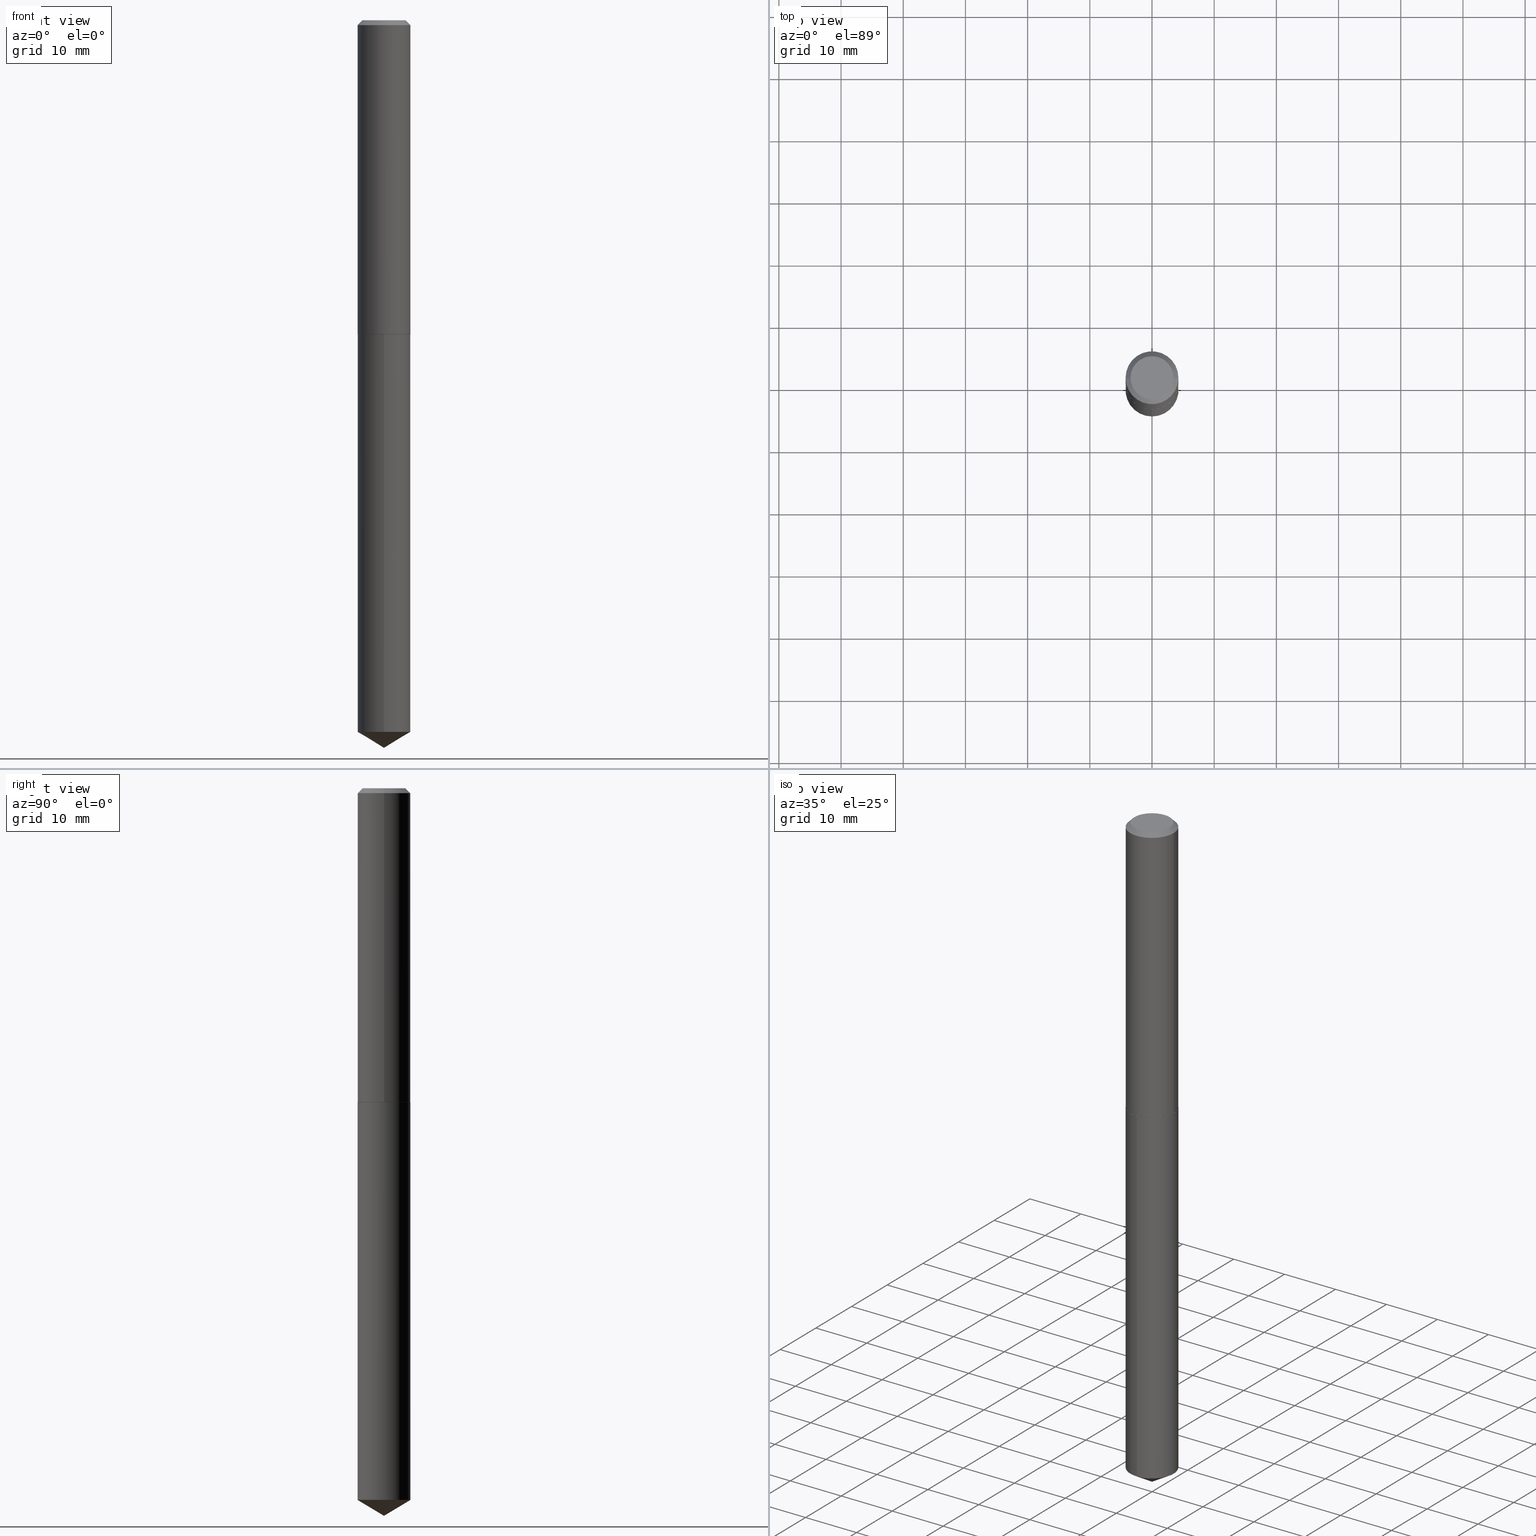
[diagram: canonical four-view strip — front | top / right | iso, engineering-drawing reading convention]
A machine part, canonical four-view strip (front | top / right | iso — engineering-drawing reading convention). The complete STEP part file that produces these views, byte-faithful:
ISO-10303-21;
HEADER;
FILE_DESCRIPTION (( 'STEP AP203' ),
    '1' );
FILE_NAME ('68286.STEP',
    '2024-04-23T12:58:16',
    ( '' ),
    ( '' ),
    'SwSTEP 2.0',
    'SolidWorks 2023',
    '' );
FILE_SCHEMA (( 'CONFIG_CONTROL_DESIGN' ));
ENDSEC;

DATA;
#1 = CARTESIAN_POINT ( 'NONE',  ( 1.188737996926758082E-15, 0.1672999999999930931, -1.988100000000000644 ) ) ;
#2 = ORIENTED_EDGE ( 'NONE', *, *, #349, .F. ) ;
#3 = CC_DESIGN_APPROVAL ( #180, ( #195 ) ) ;
#4 = DIRECTION ( 'NONE',  ( 0.000000000000000000, 0.000000000000000000, 1.000000000000000000 ) ) ;
#5 = ORIENTED_EDGE ( 'NONE', *, *, #78, .T. ) ;
#6 = DIRECTION ( 'NONE',  ( -2.445468806185136597E-29, 3.491481338843145583E-15, 1.000000000000000000 ) ) ;
#7 = VERTEX_POINT ( 'NONE', #71 ) ;
#8 = AXIS2_PLACEMENT_3D ( 'NONE', #32, #6, #129 ) ;
#9 = ADVANCED_FACE ( 'NONE', ( #338 ), #306, .T. ) ;
#10 = CALENDAR_DATE ( 2024, 23, 4 ) ;
#11 = LENGTH_MEASURE_WITH_UNIT ( LENGTH_MEASURE( 0.02539999999999999897 ), #268 );
#12 = PERSON_AND_ORGANIZATION_ROLE ( 'creator' ) ;
#13 = CIRCLE ( 'NONE', #56, 0.1673000000000000043 ) ;
#14 = DIRECTION ( 'NONE',  ( -2.445468806185136597E-29, 3.491481338843145583E-15, 1.000000000000000000 ) ) ;
#15 = PRODUCT_RELATED_PRODUCT_CATEGORY ( 'detail', '', ( #97 ) ) ;
#16 = CONICAL_SURFACE ( 'NONE', #278, 0.1673000000000002818, 0.7853981633973118326 ) ;
#17 = EDGE_CURVE ( 'NONE', #47, #93, #212, .T. ) ;
#18 = CONICAL_SURFACE ( 'NONE', #118, 0.1673000000000000043, 0.7853981633974450594 ) ;
#19 = DIRECTION ( 'NONE',  ( -2.445468806185136597E-29, 3.491481338843145583E-15, 1.000000000000000000 ) ) ;
#20 = CARTESIAN_POINT ( 'NONE',  ( -8.500465600420216784E-28, 1.213900885174054718E-13, 34.76377874015748404 ) ) ;
#21 = AXIS2_PLACEMENT_3D ( 'NONE', #296, #386, #262 ) ;
#22 = ORIENTED_EDGE ( 'NONE', *, *, #197, .T. ) ;
#23 = CC_DESIGN_DATE_AND_TIME_ASSIGNMENT ( #216, #346, ( #195 ) ) ;
#24 = FACE_OUTER_BOUND ( 'NONE', #128, .T. ) ;
#25 = DIRECTION ( 'NONE',  ( -0.7071067811864509833, 7.493145998870005484E-15, 0.7071067811866440511 ) ) ;
#26 = CIRCLE ( 'NONE', #351, 0.1673000000000000043 ) ;
#27 = PLANE ( 'NONE',  #69 ) ;
#28 = FACE_OUTER_BOUND ( 'NONE', #61, .T. ) ;
#29 = PRODUCT_DEFINITION_FORMATION_WITH_SPECIFIED_SOURCE ( 'ANY', '', #97, .NOT_KNOWN. ) ;
#30 = UNCERTAINTY_MEASURE_WITH_UNIT (LENGTH_MEASURE( 1.000000000000000082E-05 ), #153, 'distance_accuracy_value', 'NONE');
#31 = DIRECTION ( 'NONE',  ( -6.982962677686266711E-15, -1.000000000000000000, 3.265807523806650431E-15 ) ) ;
#32 = CARTESIAN_POINT ( 'NONE',  ( 0.000000000000000000, 0.000000000000000000, 0.000000000000000000 ) ) ;
#33 = VECTOR ( 'NONE', #83, 39.37007874015748143 ) ;
#34 = EDGE_CURVE ( 'NONE', #63, #121, #372, .T. ) ;
#35 = ORIENTED_EDGE ( 'NONE', *, *, #318, .T. ) ;
#36 = EDGE_CURVE ( 'NONE', #254, #277, #184, .T. ) ;
#37 = CIRCLE ( 'NONE', #235, 0.1360500000000000043 ) ;
#38 = DATE_AND_TIME ( #100, #40 ) ;
#39 = ORIENTED_EDGE ( 'NONE', *, *, #34, .F. ) ;
#40 = LOCAL_TIME ( 8, 58, 16.00000000000000000, #244 ) ;
#41 = EDGE_CURVE ( 'NONE', #277, #254, #37, .T. ) ;
#42 = APPROVAL_ROLE ( '' ) ;
#43 = AXIS2_PLACEMENT_3D ( 'NONE', #357, #174, #232 ) ;
#44 = APPLICATION_CONTEXT ( 'configuration controlled 3d designs of mechanical parts and assemblies' ) ;
#45 = CONICAL_SURFACE ( 'NONE', #138, 0.1673000000000000043, 0.7853981633974450594 ) ;
#46 = ADVANCED_FACE ( 'NONE', ( #198 ), #109, .T. ) ;
#47 = VERTEX_POINT ( 'NONE', #293 ) ;
#48 = COORDINATED_UNIVERSAL_TIME_OFFSET ( 5, 0, .BEHIND. ) ;
#49 = AXIS2_PLACEMENT_3D ( 'NONE', #53, #255, #355 ) ;
#50 = LINE ( 'NONE', #354, #369 ) ;
#51 = CARTESIAN_POINT ( 'NONE',  ( 0.1673000000000001430, -1.168249655976913378E-15, 8.157843745906607218E-30 ) ) ;
#52 = ORIENTED_EDGE ( 'NONE', *, *, #300, .T. ) ;
#53 = CARTESIAN_POINT ( 'NONE',  ( 0.000000000000000000, 0.000000000000000000, 0.000000000000000000 ) ) ;
#54 = DIRECTION ( 'NONE',  ( -2.445221730653592227E-29, 3.491835165066983008E-15, 1.000000000000000000 ) ) ;
#55 = DIRECTION ( 'NONE',  ( -2.445221730653592227E-29, 3.491835165066983008E-15, 1.000000000000000000 ) ) ;
#56 = AXIS2_PLACEMENT_3D ( 'NONE', #275, #215, #388 ) ;
#57 = DIRECTION ( 'NONE',  ( -2.445221730653592227E-29, 3.491835165066983008E-15, 1.000000000000000000 ) ) ;
#58 = CARTESIAN_POINT ( 'NONE',  ( 0.1360500000000000043, -1.095120429731421513E-15, 1.200153863171560703E-18 ) ) ;
#59 = CARTESIAN_POINT ( 'NONE',  ( 4.861836533576670348E-29, -6.941414049754057803E-15, -1.988099999999999978 ) ) ;
#60 = CARTESIAN_POINT ( 'NONE',  ( -2.934938834991149230E-47, 4.190314816979047694E-33, 1.200153863164409918E-18 ) ) ;
#61 = EDGE_LOOP ( 'NONE', ( #107, #286 ) ) ;
#62 = CC_DESIGN_SECURITY_CLASSIFICATION ( #379, ( #29 ) ) ;
#63 = VERTEX_POINT ( 'NONE', #176 ) ;
#64 = CC_DESIGN_PERSON_AND_ORGANIZATION_ASSIGNMENT ( #131, #157, ( #29 ) ) ;
#65 = PERSON_AND_ORGANIZATION ( #340, #159 ) ;
#66 = EDGE_LOOP ( 'NONE', ( #52, #238, #236, #377 ) ) ;
#67 = ORIENTED_EDGE ( 'NONE', *, *, #102, .T. ) ;
#68 = PERSON_AND_ORGANIZATION_ROLE ( 'creator' ) ;
#69 = AXIS2_PLACEMENT_3D ( 'NONE', #335, #211, #245 ) ;
#70 = VERTEX_POINT ( 'NONE', #1 ) ;
#71 = CARTESIAN_POINT ( 'NONE',  ( 0.1668000000000002536, -8.106172224392129160E-15, -1.988100000000000200 ) ) ;
#72 =( NAMED_UNIT ( * ) PLANE_ANGLE_UNIT ( ) SI_UNIT ( $, .RADIAN. ) );
#73 = AXIS2_PLACEMENT_3D ( 'NONE', #20, #233, #228 ) ;
#74 = PERSON_AND_ORGANIZATION ( #340, #159 ) ;
#75 = FACE_OUTER_BOUND ( 'NONE', #337, .T. ) ;
#76 = DATE_AND_TIME ( #229, #166 ) ;
#77 = ORIENTED_EDGE ( 'NONE', *, *, #318, .F. ) ;
#78 = EDGE_CURVE ( 'NONE', #213, #121, #285, .T. ) ;
#79 = CARTESIAN_POINT ( 'NONE',  ( 7.642090019328603538E-31, -1.091087918388490390E-16, -0.03125000000000021511 ) ) ;
#80 = DIRECTION ( 'NONE',  ( -2.445221730653592227E-29, 3.491835165066983008E-15, 1.000000000000000000 ) ) ;
#81 = LINE ( 'NONE', #324, #246 ) ;
#82 = FACE_OUTER_BOUND ( 'NONE', #368, .T. ) ;
#83 = DIRECTION ( 'NONE',  ( -2.445221730653592227E-29, 3.491835165066983008E-15, 1.000000000000000000 ) ) ;
#84 = CIRCLE ( 'NONE', #315, 0.1668000000000002536 ) ;
#85 = APPROVAL ( #316, 'UNSPECIFIED' ) ;
#86 = LINE ( 'NONE', #89, #371 ) ;
#87 = EDGE_CURVE ( 'NONE', #123, #47, #149, .T. ) ;
#88 = EDGE_LOOP ( 'NONE', ( #366, #345, #22, #77 ) ) ;
#89 = CARTESIAN_POINT ( 'NONE',  ( 1.126441589431707072E-28, -1.608303343701682065E-14, -4.606300000000000061 ) ) ;
#90 = EDGE_CURVE ( 'NONE', #123, #332, #112, .T. ) ;
#91 = ORIENTED_EDGE ( 'NONE', *, *, #177, .T. ) ;
#92 = APPROVAL_ROLE ( '' ) ;
#93 = VERTEX_POINT ( 'NONE', #140 ) ;
#94 = APPROVAL_STATUS ( 'not_yet_approved' ) ;
#95 = APPROVAL_PERSON_ORGANIZATION ( #311, #210, #42 ) ;
#96 = DIRECTION ( 'NONE',  ( 1.000000000000000000, 0.000000000000000000, 0.000000000000000000 ) ) ;
#97 = PRODUCT ( '68286', '68286', '', ( #276 ) ) ;
#98 = MANIFOLD_SOLID_BREP ( 'Body-Move/Copy2[2]', #320 ) ;
#99 = DIRECTION ( 'NONE',  ( -6.982962677686266711E-15, -1.000000000000000000, 3.265807523806650431E-15 ) ) ;
#100 = CALENDAR_DATE ( 2024, 23, 4 ) ;
#101 = AXIS2_PLACEMENT_3D ( 'NONE', #258, #322, #165 ) ;
#102 = EDGE_CURVE ( 'NONE', #277, #93, #256, .T. ) ;
#103 = ADVANCED_FACE ( 'NONE', ( #356 ), #251, .T. ) ;
#104 = VECTOR ( 'NONE', #182, 39.37007874015748143 ) ;
#105 = CARTESIAN_POINT ( 'NONE',  ( -0.1668000000000002536, -5.753579539332099070E-15, -1.988100000000000200 ) ) ;
#106 = LOCAL_TIME ( 8, 58, 16.00000000000000000, #48 ) ;
#107 = ORIENTED_EDGE ( 'NONE', *, *, #170, .T. ) ;
#108 = CARTESIAN_POINT ( 'NONE',  ( -1.168249655976802346E-15, -0.1673000000000157694, -4.505776018436688624 ) ) ;
#109 = CYLINDRICAL_SURFACE ( 'NONE', #365, 0.1673000000000000043 ) ;
#110 = DIRECTION ( 'NONE',  ( 2.445468806185136597E-29, -3.491481338843145583E-15, -1.000000000000000000 ) ) ;
#111 = CYLINDRICAL_SURFACE ( 'NONE', #200, 0.1673000000000000043 ) ;
#112 = LINE ( 'NONE', #51, #208 ) ;
#113 = LINE ( 'NONE', #260, #274 ) ;
#114 = PLANE ( 'NONE',  #21 ) ;
#115 = CARTESIAN_POINT ( 'NONE',  ( 1.188737996926757687E-15, 0.1672999999999842669, -4.505776018436689512 ) ) ;
#116 = LOCAL_TIME ( 8, 58, 16.00000000000000000, #183 ) ;
#117 = DIRECTION ( 'NONE',  ( 1.000000000000000000, -6.982962677686262766E-15, 0.000000000000000000 ) ) ;
#118 = AXIS2_PLACEMENT_3D ( 'NONE', #261, #110, #385 ) ;
#119 = AXIS2_PLACEMENT_3D ( 'NONE', #326, #259, #146 ) ;
#120 = VERTEX_POINT ( 'NONE', #105 ) ;
#121 = VERTEX_POINT ( 'NONE', #108 ) ;
#122 = ORIENTED_EDGE ( 'NONE', *, *, #90, .F. ) ;
#123 = VERTEX_POINT ( 'NONE', #231 ) ;
#124 = ADVANCED_FACE ( 'NONE', ( #82 ), #287, .T. ) ;
#125 = ORIENTED_EDGE ( 'NONE', *, *, #17, .T. ) ;
#126 = APPROVAL_STATUS ( 'not_yet_approved' ) ;
#127 = VECTOR ( 'NONE', #133, 39.37007874015748143 ) ;
#128 = EDGE_LOOP ( 'NONE', ( #203, #5, #321, #2 ) ) ;
#129 = DIRECTION ( 'NONE',  ( 1.000000000000000000, -6.982962677686266711E-15, 4.876176775795935793E-29 ) ) ;
#130 = ORIENTED_EDGE ( 'NONE', *, *, #41, .F. ) ;
#131 = PERSON_AND_ORGANIZATION ( #340, #159 ) ;
#132 = EDGE_CURVE ( 'NONE', #93, #332, #26, .T. ) ;
#133 = DIRECTION ( 'NONE',  ( -5.985567269335945224E-15, -0.8571673007021107793, 0.5150380749100567090 ) ) ;
#134 = DIRECTION ( 'NONE',  ( -2.445221730653592227E-29, 3.491835165066983008E-15, 1.000000000000000000 ) ) ;
#135 = APPLICATION_CONTEXT ( 'configuration controlled 3d designs of mechanical parts and assemblies' ) ;
#136 = CC_DESIGN_PERSON_AND_ORGANIZATION_ASSIGNMENT ( #65, #302, ( #97 ) ) ;
#137 = ADVANCED_FACE ( 'NONE', ( #223 ), #16, .T. ) ;
#138 = AXIS2_PLACEMENT_3D ( 'NONE', #325, #196, #381 ) ;
#139 = DIRECTION ( 'NONE',  ( 1.000000000000000000, -6.982962677686262766E-15, 0.000000000000000000 ) ) ;
#140 = CARTESIAN_POINT ( 'NONE',  ( -0.1673000000000000043, -2.335650553535093086E-15, -0.03125000000000021511 ) ) ;
#141 = FACE_OUTER_BOUND ( 'NONE', #181, .T. ) ;
#142 = CARTESIAN_POINT ( 'NONE',  ( 4.860613799173577546E-29, -6.939668309084636299E-15, -1.987600000000000033 ) ) ;
#143 = DIRECTION ( 'NONE',  ( -6.982962677686266711E-15, -1.000000000000000000, 3.265807523806650431E-15 ) ) ;
#144 = DIRECTION ( 'NONE',  ( 1.000000000000000000, -6.982962677686267499E-15, 4.876242033288211584E-29 ) ) ;
#145 = DIRECTION ( 'NONE',  ( -2.445468806185136597E-29, 3.491481338843145583E-15, 1.000000000000000000 ) ) ;
#146 = DIRECTION ( 'NONE',  ( -6.982962677686266711E-15, -1.000000000000000000, 3.265807523806650431E-15 ) ) ;
#147 = FACE_OUTER_BOUND ( 'NONE', #221, .T. ) ;
#148 = EDGE_LOOP ( 'NONE', ( #39, #214, #224 ) ) ;
#149 = CIRCLE ( 'NONE', #329, 0.1673000000000002818 ) ;
#150 = CIRCLE ( 'NONE', #280, 0.1673000000000000043 ) ;
#151 = ORIENTED_EDGE ( 'NONE', *, *, #158, .F. ) ;
#152 = APPROVAL_PERSON_ORGANIZATION ( #273, #180, #92 ) ;
#153 =( CONVERSION_BASED_UNIT ( 'INCH', #11 ) LENGTH_UNIT ( ) NAMED_UNIT ( #339 ) );
#154 = APPROVAL_DATE_TIME ( #38, #210 ) ;
#155 = APPLICATION_PROTOCOL_DEFINITION ( 'international standard', 'config_control_design', 1994, #44 ) ;
#156 = ADVANCED_FACE ( 'NONE', ( #360 ), #230, .T. ) ;
#157 = PERSON_AND_ORGANIZATION_ROLE ( 'design_supplier' ) ;
#158 = EDGE_CURVE ( 'NONE', #254, #332, #50, .T. ) ;
#159 = ORGANIZATION ( 'UNSPECIFIED', 'UNSPECIFIED', '' ) ;
#160 = SECURITY_CLASSIFICATION_LEVEL ( 'unclassified' ) ;
#161 = EDGE_LOOP ( 'NONE', ( #162, #125, #309, #122 ) ) ;
#162 = ORIENTED_EDGE ( 'NONE', *, *, #87, .T. ) ;
#163 = CARTESIAN_POINT ( 'NONE',  ( 4.861836533576670348E-29, -6.941414049754057803E-15, -1.988099999999999978 ) ) ;
#164 = DIRECTION ( 'NONE',  ( -2.445468806185136877E-29, 3.491481338843145188E-15, 1.000000000000000000 ) ) ;
#165 = DIRECTION ( 'NONE',  ( 1.000000000000000000, -6.982962677686266711E-15, 0.000000000000000000 ) ) ;
#166 = LOCAL_TIME ( 8, 58, 16.00000000000000000, #375 ) ;
#167 = CARTESIAN_POINT ( 'NONE',  ( 1.101811264460347763E-28, -1.573272370517711890E-14, -4.505776018436689512 ) ) ;
#168 = FACE_OUTER_BOUND ( 'NONE', #185, .T. ) ;
#169 = SHAPE_DEFINITION_REPRESENTATION ( #279, #187 ) ;
#170 = EDGE_CURVE ( 'NONE', #298, #70, #150, .T. ) ;
#171 = DIRECTION ( 'NONE',  ( 1.000000000000000000, -6.982962677686262766E-15, 0.000000000000000000 ) ) ;
#172 = DIRECTION ( 'NONE',  ( 1.000000000000000000, -6.982962677686267499E-15, 4.876242033288211584E-29 ) ) ;
#173 = ORIENTED_EDGE ( 'NONE', *, *, #34, .T. ) ;
#174 = DIRECTION ( 'NONE',  ( 2.445221730653591947E-29, -3.491835165066983008E-15, -1.000000000000000000 ) ) ;
#175 = ADVANCED_FACE ( 'NONE', ( #75 ), #45, .T. ) ;
#176 = CARTESIAN_POINT ( 'NONE',  ( 1.126342485790964133E-28, -1.608444032084804268E-14, -4.606300000000000061 ) ) ;
#177 = EDGE_CURVE ( 'NONE', #332, #93, #303, .T. ) ;
#178 = ORIENTED_EDGE ( 'NONE', *, *, #348, .T. ) ;
#179 = ORIENTED_EDGE ( 'NONE', *, *, #90, .T. ) ;
#180 = APPROVAL ( #126, 'UNSPECIFIED' ) ;
#181 = EDGE_LOOP ( 'NONE', ( #291, #173, #317 ) ) ;
#182 = DIRECTION ( 'NONE',  ( -2.445468806185136877E-29, 3.491481338843145188E-15, 1.000000000000000000 ) ) ;
#183 = COORDINATED_UNIVERSAL_TIME_OFFSET ( 5, 0, .BEHIND. ) ;
#184 = CIRCLE ( 'NONE', #201, 0.1360500000000000043 ) ;
#185 = EDGE_LOOP ( 'NONE', ( #271, #342 ) ) ;
#186 = ADVANCED_FACE ( 'NONE', ( #24 ), #111, .T. ) ;
#187 = ADVANCED_BREP_SHAPE_REPRESENTATION ( '68286', ( #234, #98, #347 ), #188 ) ;
#188 =( GEOMETRIC_REPRESENTATION_CONTEXT ( 3 ) GLOBAL_UNCERTAINTY_ASSIGNED_CONTEXT ( ( #30 ) ) GLOBAL_UNIT_ASSIGNED_CONTEXT ( ( #153, #72, #206 ) ) REPRESENTATION_CONTEXT ( 'NONE', 'WORKASPACE' ) );
#189 = COORDINATED_UNIVERSAL_TIME_OFFSET ( 5, 0, .BEHIND. ) ;
#190 = ADVANCED_FACE ( 'NONE', ( #217 ), #18, .T. ) ;
#191 = DIRECTION ( 'NONE',  ( -2.445468806185136597E-29, 3.491481338843145583E-15, 1.000000000000000000 ) ) ;
#192 = CARTESIAN_POINT ( 'NONE',  ( 4.860613799173577546E-29, -6.939668309084636299E-15, -1.987600000000000033 ) ) ;
#193 = DIRECTION ( 'NONE',  ( -6.982962677686265922E-15, -1.000000000000000000, 3.468864327941590270E-15 ) ) ;
#194 = DIRECTION ( 'NONE',  ( 0.7071067811864509833, -2.468850131081245741E-15, 0.7071067811866440511 ) ) ;
#195 = PRODUCT_DEFINITION ( 'UNKNOWN', '', #29, #265 ) ;
#196 = DIRECTION ( 'NONE',  ( 2.445468806185136597E-29, -3.491481338843145583E-15, -1.000000000000000000 ) ) ;
#197 = EDGE_CURVE ( 'NONE', #7, #123, #113, .T. ) ;
#198 = FACE_OUTER_BOUND ( 'NONE', #66, .T. ) ;
#199 = CARTESIAN_POINT ( 'NONE',  ( -0.1673000000000002818, -5.750930312157987080E-15, -1.987600000000000033 ) ) ;
#200 = AXIS2_PLACEMENT_3D ( 'NONE', #378, #134, #99 ) ;
#201 = AXIS2_PLACEMENT_3D ( 'NONE', #248, #374, #172 ) ;
#202 = DIRECTION ( 'NONE',  ( -2.445468806185136597E-29, 3.491481338843145583E-15, 1.000000000000000000 ) ) ;
#203 = ORIENTED_EDGE ( 'NONE', *, *, #247, .F. ) ;
#204 = CC_DESIGN_APPROVAL ( #210, ( #29 ) ) ;
#205 = CC_DESIGN_APPROVAL ( #85, ( #379 ) ) ;
#206 =( NAMED_UNIT ( * ) SI_UNIT ( $, .STERADIAN. ) SOLID_ANGLE_UNIT ( ) );
#207 = DIRECTION ( 'NONE',  ( 1.000000000000000000, -6.982962677686267499E-15, 0.000000000000000000 ) ) ;
#208 = VECTOR ( 'NONE', #164, 39.37007874015748143 ) ;
#209 = ORIENTED_EDGE ( 'NONE', *, *, #36, .F. ) ;
#210 = APPROVAL ( #94, 'UNSPECIFIED' ) ;
#211 = DIRECTION ( 'NONE',  ( 2.438088387897960049E-29, -3.491481338843145188E-15, -1.000000000000000000 ) ) ;
#212 = LINE ( 'NONE', #240, #104 ) ;
#213 = VERTEX_POINT ( 'NONE', #115 ) ;
#214 = ORIENTED_EDGE ( 'NONE', *, *, #344, .T. ) ;
#215 = DIRECTION ( 'NONE',  ( -2.445221730653592227E-29, 3.491835165066983008E-15, 1.000000000000000000 ) ) ;
#216 = DATE_AND_TIME ( #10, #116 ) ;
#217 = FACE_OUTER_BOUND ( 'NONE', #305, .T. ) ;
#218 = PERSON_AND_ORGANIZATION ( #340, #159 ) ;
#219 = ADVANCED_FACE ( 'NONE', ( #28 ), #387, .F. ) ;
#220 = APPROVAL_ROLE ( '' ) ;
#221 = EDGE_LOOP ( 'NONE', ( #297, #341 ) ) ;
#222 = LOCAL_TIME ( 8, 58, 16.00000000000000000, #189 ) ;
#223 = FACE_OUTER_BOUND ( 'NONE', #88, .T. ) ;
#224 = ORIENTED_EDGE ( 'NONE', *, *, #300, .F. ) ;
#225 = DIRECTION ( 'NONE',  ( -6.982962677686266711E-15, -1.000000000000000000, 3.265807523806650431E-15 ) ) ;
#226 = DIRECTION ( 'NONE',  ( -0.7071067811865452413, 2.468850131082233000E-15, -0.7071067811865497932 ) ) ;
#227 = ADVANCED_FACE ( 'NONE', ( #141 ), #312, .T. ) ;
#228 = DIRECTION ( 'NONE',  ( -6.982962677686265922E-15, -1.000000000000000000, 3.468864327941590270E-15 ) ) ;
#229 = CALENDAR_DATE ( 2024, 23, 4 ) ;
#230 = CONICAL_SURFACE ( 'NONE', #241, 0.1673000000000002818, 0.7853981633973118326 ) ;
#231 = CARTESIAN_POINT ( 'NONE',  ( 0.1673000000000002818, -8.107917965061549875E-15, -1.987600000000000033 ) ) ;
#232 = DIRECTION ( 'NONE',  ( 6.982962677686265922E-15, 1.000000000000000000, -3.491835165066983008E-15 ) ) ;
#233 = DIRECTION ( 'NONE',  ( -2.445221730653592227E-29, 3.491835165066983008E-15, 1.000000000000000000 ) ) ;
#234 = MANIFOLD_SOLID_BREP ( 'Body-Move/Copy2[1]', #343 ) ;
#235 = AXIS2_PLACEMENT_3D ( 'NONE', #60, #202, #144 ) ;
#236 = ORIENTED_EDGE ( 'NONE', *, *, #170, .F. ) ;
#237 = ORIENTED_EDGE ( 'NONE', *, *, #132, .F. ) ;
#238 = ORIENTED_EDGE ( 'NONE', *, *, #247, .T. ) ;
#239 = EDGE_CURVE ( 'NONE', #121, #298, #81, .T. ) ;
#240 = CARTESIAN_POINT ( 'NONE',  ( -0.1673000000000001430, 1.188737996926648627E-15, -8.229378405996464557E-30 ) ) ;
#241 = AXIS2_PLACEMENT_3D ( 'NONE', #142, #191, #171 ) ;
#242 = ORIENTED_EDGE ( 'NONE', *, *, #158, .T. ) ;
#243 = CIRCLE ( 'NONE', #331, 0.1673000000000000043 ) ;
#244 = COORDINATED_UNIVERSAL_TIME_OFFSET ( 5, 0, .BEHIND. ) ;
#245 = DIRECTION ( 'NONE',  ( -1.000000000000000000, 6.982962677686265922E-15, -4.876176775795935793E-29 ) ) ;
#246 = VECTOR ( 'NONE', #55, 39.37007874015748143 ) ;
#247 = EDGE_CURVE ( 'NONE', #213, #70, #364, .T. ) ;
#248 = CARTESIAN_POINT ( 'NONE',  ( -2.934938834991149230E-47, 4.190314816979047694E-33, 1.200153863164409918E-18 ) ) ;
#249 = AXIS2_PLACEMENT_3D ( 'NONE', #333, #363, #299 ) ;
#250 = PERSON_AND_ORGANIZATION_ROLE ( 'classification_officer' ) ;
#251 = CONICAL_SURFACE ( 'NONE', #334, 65.52281426576850265, 1.029744258676654978 ) ;
#252 = DATE_AND_TIME ( #283, #222 ) ;
#253 = ORIENTED_EDGE ( 'NONE', *, *, #87, .F. ) ;
#254 = VERTEX_POINT ( 'NONE', #58 ) ;
#255 = DIRECTION ( 'NONE',  ( -2.445468806185136597E-29, 3.491481338843145583E-15, 1.000000000000000000 ) ) ;
#256 = LINE ( 'NONE', #382, #367 ) ;
#257 = CARTESIAN_POINT ( 'NONE',  ( -1.168249655976863877E-15, -0.1673000000000069432, -1.988099999999999534 ) ) ;
#258 = CARTESIAN_POINT ( 'NONE',  ( 7.642090019328603538E-31, -1.091087918388490390E-16, -0.03125000000000021511 ) ) ;
#259 = DIRECTION ( 'NONE',  ( -2.445221730653592227E-29, 3.491835165066983008E-15, 1.000000000000000000 ) ) ;
#260 = CARTESIAN_POINT ( 'NONE',  ( 0.1673000000000002818, -8.107917965061549875E-15, -1.987600000000000033 ) ) ;
#261 = CARTESIAN_POINT ( 'NONE',  ( 7.642090019328603538E-31, -1.091087918388490390E-16, -0.03125000000000021511 ) ) ;
#262 = DIRECTION ( 'NONE',  ( 1.000000000000000000, -6.982962677686265922E-15, 4.876176775795935793E-29 ) ) ;
#263 = VECTOR ( 'NONE', #25, 39.37007874015748143 ) ;
#264 = CARTESIAN_POINT ( 'NONE',  ( 4.860613799173577546E-29, -6.939668309084636299E-15, -1.987600000000000033 ) ) ;
#265 = DESIGN_CONTEXT ( 'detailed design', #135, 'design' ) ;
#266 = EDGE_CURVE ( 'NONE', #120, #47, #295, .T. ) ;
#267 = EDGE_LOOP ( 'NONE', ( #178, #284, #253, #380 ) ) ;
#268 =( LENGTH_UNIT ( ) NAMED_UNIT ( * ) SI_UNIT ( $, .METRE. ) );
#269 = CC_DESIGN_PERSON_AND_ORGANIZATION_ASSIGNMENT ( #218, #12, ( #29 ) ) ;
#270 = AXIS2_PLACEMENT_3D ( 'NONE', #327, #145, #288 ) ;
#271 = ORIENTED_EDGE ( 'NONE', *, *, #348, .F. ) ;
#272 = EDGE_CURVE ( 'NONE', #120, #7, #290, .T. ) ;
#273 = PERSON_AND_ORGANIZATION ( #340, #159 ) ;
#274 = VECTOR ( 'NONE', #194, 39.37007874015748143 ) ;
#275 = CARTESIAN_POINT ( 'NONE',  ( 4.861836533576670348E-29, -6.941414049754057803E-15, -1.988099999999999978 ) ) ;
#276 = MECHANICAL_CONTEXT ( 'NONE', #44, 'mechanical' ) ;
#277 = VERTEX_POINT ( 'NONE', #383 ) ;
#278 = AXIS2_PLACEMENT_3D ( 'NONE', #192, #292, #139 ) ;
#279 = PRODUCT_DEFINITION_SHAPE ( 'NONE', 'NONE',  #195 ) ;
#280 = AXIS2_PLACEMENT_3D ( 'NONE', #163, #57, #225 ) ;
#281 = CC_DESIGN_DATE_AND_TIME_ASSIGNMENT ( #252, #376, ( #379 ) ) ;
#282 = APPROVAL_DATE_TIME ( #314, #85 ) ;
#283 = CALENDAR_DATE ( 2024, 23, 4 ) ;
#284 = ORIENTED_EDGE ( 'NONE', *, *, #266, .T. ) ;
#285 = CIRCLE ( 'NONE', #119, 0.1673000000000000043 ) ;
#286 = ORIENTED_EDGE ( 'NONE', *, *, #349, .T. ) ;
#287 = CYLINDRICAL_SURFACE ( 'NONE', #49, 0.1673000000000001430 ) ;
#288 = DIRECTION ( 'NONE',  ( 1.000000000000000000, -6.982962677686267499E-15, 0.000000000000000000 ) ) ;
#289 = APPROVAL_DATE_TIME ( #76, #180 ) ;
#290 = CIRCLE ( 'NONE', #270, 0.1668000000000002536 ) ;
#291 = ORIENTED_EDGE ( 'NONE', *, *, #344, .F. ) ;
#292 = DIRECTION ( 'NONE',  ( -2.445468806185136597E-29, 3.491481338843145583E-15, 1.000000000000000000 ) ) ;
#293 = CARTESIAN_POINT ( 'NONE',  ( -0.1673000000000002818, -5.750930312157987080E-15, -1.987600000000000033 ) ) ;
#294 = DIRECTION ( 'NONE',  ( -2.445221730653592227E-29, 3.491835165066983008E-15, 1.000000000000000000 ) ) ;
#295 = LINE ( 'NONE', #199, #263 ) ;
#296 = CARTESIAN_POINT ( 'NONE',  ( 2.588108950241723644E-29, -1.019752136162690713E-14, -1.988099999999999978 ) ) ;
#297 = ORIENTED_EDGE ( 'NONE', *, *, #41, .T. ) ;
#298 = VERTEX_POINT ( 'NONE', #257 ) ;
#299 = DIRECTION ( 'NONE',  ( 1.000000000000000000, -6.982962677686262766E-15, 0.000000000000000000 ) ) ;
#300 = EDGE_CURVE ( 'NONE', #121, #213, #243, .T. ) ;
#301 = ORIENTED_EDGE ( 'NONE', *, *, #132, .T. ) ;
#302 = PERSON_AND_ORGANIZATION_ROLE ( 'design_owner' ) ;
#303 = CIRCLE ( 'NONE', #101, 0.1673000000000000043 ) ;
#304 = APPROVAL_PERSON_ORGANIZATION ( #352, #85, #220 ) ;
#305 = EDGE_LOOP ( 'NONE', ( #151, #130, #67, #301 ) ) ;
#306 = CYLINDRICAL_SURFACE ( 'NONE', #8, 0.1673000000000001430 ) ;
#307 = CARTESIAN_POINT ( 'NONE',  ( 4.861836533576670908E-29, -6.941414049754058591E-15, -1.988100000000000200 ) ) ;
#308 = APPLICATION_PROTOCOL_DEFINITION ( 'international standard', 'config_control_design', 1994, #135 ) ;
#309 = ORIENTED_EDGE ( 'NONE', *, *, #177, .F. ) ;
#310 = CARTESIAN_POINT ( 'NONE',  ( 1.126342485790964133E-28, -1.608444032084804268E-14, -4.606300000000000061 ) ) ;
#311 = PERSON_AND_ORGANIZATION ( #340, #159 ) ;
#312 = CONICAL_SURFACE ( 'NONE', #73, 65.52281426576850265, 1.029744258676654978 ) ;
#313 = CC_DESIGN_PERSON_AND_ORGANIZATION_ASSIGNMENT ( #74, #250, ( #379 ) ) ;
#314 = DATE_AND_TIME ( #350, #106 ) ;
#315 = AXIS2_PLACEMENT_3D ( 'NONE', #307, #14, #207 ) ;
#316 = APPROVAL_STATUS ( 'not_yet_approved' ) ;
#317 = ORIENTED_EDGE ( 'NONE', *, *, #78, .F. ) ;
#318 = EDGE_CURVE ( 'NONE', #47, #123, #336, .T. ) ;
#319 = DIRECTION ( 'NONE',  ( 1.000000000000000000, -6.982962677686266711E-15, 0.000000000000000000 ) ) ;
#320 = CLOSED_SHELL ( 'NONE', ( #175, #9, #156, #328, #137, #124, #190, #353 ) ) ;
#321 = ORIENTED_EDGE ( 'NONE', *, *, #239, .T. ) ;
#322 = DIRECTION ( 'NONE',  ( -2.445468806185136597E-29, 3.491481338843145583E-15, 1.000000000000000000 ) ) ;
#323 = CARTESIAN_POINT ( 'NONE',  ( -8.500465600420216784E-28, 1.213900885174054718E-13, 34.76377874015748404 ) ) ;
#324 = CARTESIAN_POINT ( 'NONE',  ( -1.168249655976863877E-15, -0.1673000000000069432, -1.988099999999999534 ) ) ;
#325 = CARTESIAN_POINT ( 'NONE',  ( 7.642090019328603538E-31, -1.091087918388490390E-16, -0.03125000000000021511 ) ) ;
#326 = CARTESIAN_POINT ( 'NONE',  ( 1.101811264460347763E-28, -1.573272370517711890E-14, -4.505776018436689512 ) ) ;
#327 = CARTESIAN_POINT ( 'NONE',  ( 4.861836533576670908E-29, -6.941414049754058591E-15, -1.988100000000000200 ) ) ;
#328 = ADVANCED_FACE ( 'NONE', ( #168 ), #114, .F. ) ;
#329 = AXIS2_PLACEMENT_3D ( 'NONE', #264, #389, #117 ) ;
#330 = ORIENTED_EDGE ( 'NONE', *, *, #102, .F. ) ;
#331 = AXIS2_PLACEMENT_3D ( 'NONE', #167, #294, #143 ) ;
#332 = VERTEX_POINT ( 'NONE', #390 ) ;
#333 = CARTESIAN_POINT ( 'NONE',  ( 4.860613799173577546E-29, -6.939668309084636299E-15, -1.987600000000000033 ) ) ;
#334 = AXIS2_PLACEMENT_3D ( 'NONE', #323, #80, #193 ) ;
#335 = CARTESIAN_POINT ( 'NONE',  ( -1.467469417495574615E-47, 2.095157408489523847E-33, 6.000769315822049591E-19 ) ) ;
#336 = CIRCLE ( 'NONE', #249, 0.1673000000000002818 ) ;
#337 = EDGE_LOOP ( 'NONE', ( #209, #242, #91, #330 ) ) ;
#338 = FACE_OUTER_BOUND ( 'NONE', #161, .T. ) ;
#339 = DIMENSIONAL_EXPONENTS ( 1.000000000000000000, 0.000000000000000000, 0.000000000000000000, 0.000000000000000000, 0.000000000000000000, 0.000000000000000000, 0.000000000000000000 ) ;
#340 = PERSON ( 'UNSPECIFIED', 'UNSPECIFIED', 'UNSPECIFIED', ('UNSPECIFIED'), ('UNSPECIFIED'), ('UNSPECIFIED') ) ;
#341 = ORIENTED_EDGE ( 'NONE', *, *, #36, .T. ) ;
#342 = ORIENTED_EDGE ( 'NONE', *, *, #272, .F. ) ;
#343 = CLOSED_SHELL ( 'NONE', ( #46, #103, #227, #186, #219 ) ) ;
#344 = EDGE_CURVE ( 'NONE', #63, #213, #86, .T. ) ;
#345 = ORIENTED_EDGE ( 'NONE', *, *, #272, .T. ) ;
#346 = DATE_TIME_ROLE ( 'creation_date' ) ;
#347 = AXIS2_PLACEMENT_3D ( 'NONE', #370, #4, #96 ) ;
#348 = EDGE_CURVE ( 'NONE', #7, #120, #84, .T. ) ;
#349 = EDGE_CURVE ( 'NONE', #70, #298, #13, .T. ) ;
#350 = CALENDAR_DATE ( 2024, 23, 4 ) ;
#351 = AXIS2_PLACEMENT_3D ( 'NONE', #79, #19, #319 ) ;
#352 = PERSON_AND_ORGANIZATION ( #340, #159 ) ;
#353 = ADVANCED_FACE ( 'NONE', ( #147 ), #27, .F. ) ;
#354 = CARTESIAN_POINT ( 'NONE',  ( 0.1673000000000000043, -1.256870106866026441E-15, -0.03125000000000021511 ) ) ;
#355 = DIRECTION ( 'NONE',  ( 1.000000000000000000, -6.982962677686266711E-15, 4.876176775795935793E-29 ) ) ;
#356 = FACE_OUTER_BOUND ( 'NONE', #148, .T. ) ;
#357 = CARTESIAN_POINT ( 'NONE',  ( 4.861836533576670348E-29, -6.941414049754057803E-15, -1.988099999999999978 ) ) ;
#358 = PERSON_AND_ORGANIZATION ( #340, #159 ) ;
#359 = ORIENTED_EDGE ( 'NONE', *, *, #17, .F. ) ;
#360 = FACE_OUTER_BOUND ( 'NONE', #267, .T. ) ;
#361 = CARTESIAN_POINT ( 'NONE',  ( 1.188737996926695959E-15, 0.1672999999999930931, -1.988100000000000644 ) ) ;
#362 = CC_DESIGN_PERSON_AND_ORGANIZATION_ASSIGNMENT ( #358, #68, ( #195 ) ) ;
#363 = DIRECTION ( 'NONE',  ( -2.445468806185136597E-29, 3.491481338843145583E-15, 1.000000000000000000 ) ) ;
#364 = LINE ( 'NONE', #361, #33 ) ;
#365 = AXIS2_PLACEMENT_3D ( 'NONE', #59, #54, #31 ) ;
#366 = ORIENTED_EDGE ( 'NONE', *, *, #266, .F. ) ;
#367 = VECTOR ( 'NONE', #226, 39.37007874015748143 ) ;
#368 = EDGE_LOOP ( 'NONE', ( #359, #35, #179, #237 ) ) ;
#369 = VECTOR ( 'NONE', #384, 39.37007874015748143 ) ;
#370 = CARTESIAN_POINT ( 'NONE',  ( 0.000000000000000000, 0.000000000000000000, 0.000000000000000000 ) ) ;
#371 = VECTOR ( 'NONE', #373, 39.37007874015748143 ) ;
#372 = LINE ( 'NONE', #310, #127 ) ;
#373 = DIRECTION ( 'NONE',  ( 6.090539988449782380E-15, 0.8571673007021143320, 0.5150380749100507138 ) ) ;
#374 = DIRECTION ( 'NONE',  ( -2.445468806185136597E-29, 3.491481338843145583E-15, 1.000000000000000000 ) ) ;
#375 = COORDINATED_UNIVERSAL_TIME_OFFSET ( 5, 0, .BEHIND. ) ;
#376 = DATE_TIME_ROLE ( 'classification_date' ) ;
#377 = ORIENTED_EDGE ( 'NONE', *, *, #239, .F. ) ;
#378 = CARTESIAN_POINT ( 'NONE',  ( 4.861836533576670348E-29, -6.941414049754057803E-15, -1.988099999999999978 ) ) ;
#379 = SECURITY_CLASSIFICATION ( '', '', #160 ) ;
#380 = ORIENTED_EDGE ( 'NONE', *, *, #197, .F. ) ;
#381 = DIRECTION ( 'NONE',  ( -1.000000000000000000, 6.982962677686266711E-15, 0.000000000000000000 ) ) ;
#382 = CARTESIAN_POINT ( 'NONE',  ( -0.1673000000000000043, 1.059140864138063292E-15, -0.03125000000000021511 ) ) ;
#383 = CARTESIAN_POINT ( 'NONE',  ( -0.1360500000000000043, 1.004586468218639925E-15, 1.200153863157575371E-18 ) ) ;
#384 = DIRECTION ( 'NONE',  ( 0.7071067811865452413, -7.319954787623248157E-15, -0.7071067811865497932 ) ) ;
#385 = DIRECTION ( 'NONE',  ( -1.000000000000000000, 6.982962677686266711E-15, 0.000000000000000000 ) ) ;
#386 = DIRECTION ( 'NONE',  ( -2.438088387897960049E-29, 3.491481338843145188E-15, 1.000000000000000000 ) ) ;
#387 = PLANE ( 'NONE',  #43 ) ;
#388 = DIRECTION ( 'NONE',  ( -6.982962677686266711E-15, -1.000000000000000000, 3.265807523806650431E-15 ) ) ;
#389 = DIRECTION ( 'NONE',  ( -2.445468806185136597E-29, 3.491481338843145583E-15, 1.000000000000000000 ) ) ;
#390 = CARTESIAN_POINT ( 'NONE',  ( 0.1673000000000000043, -1.277358447815761493E-15, -0.03125000000000021511 ) ) ;
ENDSEC;
END-ISO-10303-21;
